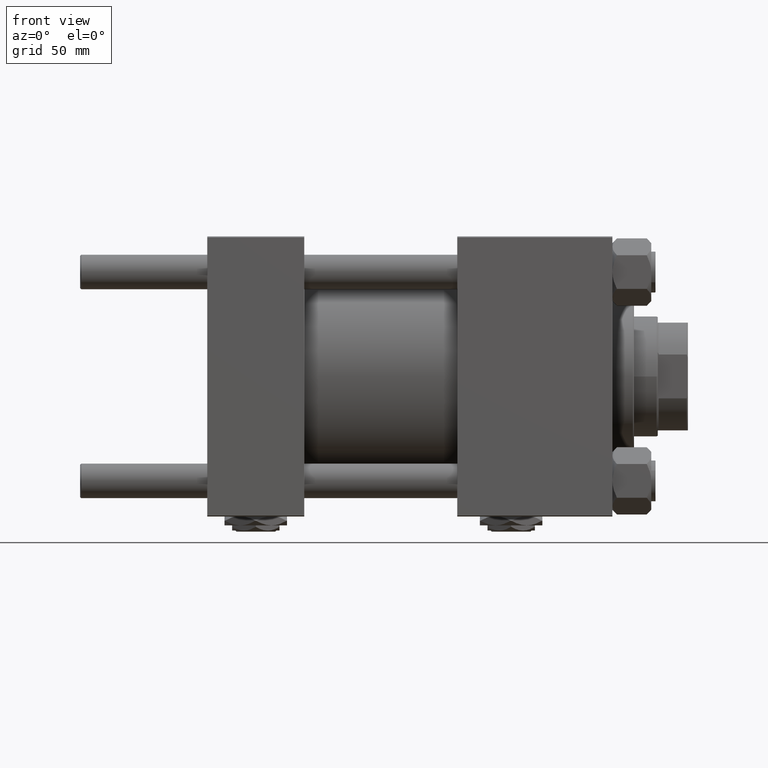
[diagram: clean part render]
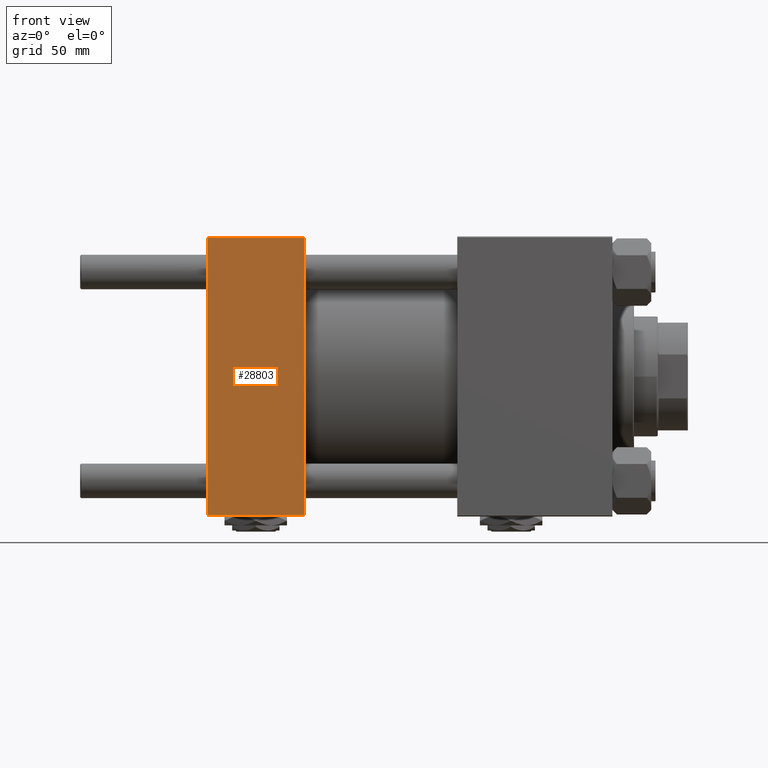
[diagram: same view with one face highlighted and labeled with its STEP entity id]
A machine part, front view. The second image highlights one B-rep face of the part: STEP entity #28803.
In plain terms, the highlighted planar face has unit normal (0, 1, 0).
Its self-contained STEP definition (entity closure, byte-faithful):
#1296 = EDGE_LOOP ( 'NONE', ( #44114, #6435, #18090, #30981 ) ) ;
#2799 = PLANE ( 'NONE',  #41675 ) ;
#3166 = CARTESIAN_POINT ( 'NONE',  ( 45.00000000000000000, -65.00000000000000000, 64.50000000000000000 ) ) ;
#4512 = VERTEX_POINT ( 'NONE', #49884 ) ;
#5077 = DIRECTION ( 'NONE',  ( 0.000000000000000000, 0.000000000000000000, -1.000000000000000000 ) ) ;
#5690 = EDGE_CURVE ( 'NONE', #4512, #36499, #43205, .T. ) ;
#6435 = ORIENTED_EDGE ( 'NONE', *, *, #5690, .T. ) ;
#6673 = CARTESIAN_POINT ( 'NONE',  ( 0.000000000000000000, -65.00000000000000000, 64.50000000000000000 ) ) ;
#9057 = LINE ( 'NONE', #24444, #20568 ) ;
#11271 = CARTESIAN_POINT ( 'NONE',  ( 45.00000000000000000, -65.00000000000000000, 65.00000000000000000 ) ) ;
#11839 = LINE ( 'NONE', #32482, #13292 ) ;
#12660 = VERTEX_POINT ( 'NONE', #40338 ) ;
#13292 = VECTOR ( 'NONE', #20824, 1000.000000000000000 ) ;
#14718 = FACE_OUTER_BOUND ( 'NONE', #1296, .T. ) ;
#18090 = ORIENTED_EDGE ( 'NONE', *, *, #38518, .F. ) ;
#20568 = VECTOR ( 'NONE', #5077, 1000.000000000000000 ) ;
#20824 = DIRECTION ( 'NONE',  ( 0.000000000000000000, 0.000000000000000000, -1.000000000000000000 ) ) ;
#24444 = CARTESIAN_POINT ( 'NONE',  ( 0.000000000000000000, -65.00000000000000000, 65.00000000000000000 ) ) ;
#26114 = EDGE_CURVE ( 'NONE', #48007, #4512, #9057, .T. ) ;
#27263 = LINE ( 'NONE', #3166, #30661 ) ;
#27535 = DIRECTION ( 'NONE',  ( -1.000000000000000000, 0.000000000000000000, 0.000000000000000000 ) ) ;
#27706 = EDGE_CURVE ( 'NONE', #12660, #48007, #27263, .T. ) ;
#28803 = ADVANCED_FACE ( 'NONE', ( #14718 ), #2799, .F. ) ;
#30661 = VECTOR ( 'NONE', #27535, 1000.000000000000000 ) ;
#30981 = ORIENTED_EDGE ( 'NONE', *, *, #27706, .T. ) ;
#31663 = DIRECTION ( 'NONE',  ( 0.000000000000000000, -0.000000000000000000, 1.000000000000000000 ) ) ;
#32482 = CARTESIAN_POINT ( 'NONE',  ( 45.00000000000000000, -65.00000000000000000, 65.00000000000000000 ) ) ;
#36499 = VERTEX_POINT ( 'NONE', #43381 ) ;
#38518 = EDGE_CURVE ( 'NONE', #12660, #36499, #11839, .T. ) ;
#40338 = CARTESIAN_POINT ( 'NONE',  ( 45.00000000000000000, -65.00000000000000000, 64.50000000000000000 ) ) ;
#41675 = AXIS2_PLACEMENT_3D ( 'NONE', #11271, #51514, #31663 ) ;
#43205 = LINE ( 'NONE', #47191, #48304 ) ;
#43381 = CARTESIAN_POINT ( 'NONE',  ( 45.00000000000000000, -65.00000000000000000, -64.49999999999991473 ) ) ;
#43977 = DIRECTION ( 'NONE',  ( 1.000000000000000000, 0.000000000000000000, 0.000000000000000000 ) ) ;
#44114 = ORIENTED_EDGE ( 'NONE', *, *, #26114, .T. ) ;
#47191 = CARTESIAN_POINT ( 'NONE',  ( 45.00000000000000000, -65.00000000000000000, -64.49999999999991473 ) ) ;
#48007 = VERTEX_POINT ( 'NONE', #6673 ) ;
#48304 = VECTOR ( 'NONE', #43977, 1000.000000000000000 ) ;
#49884 = CARTESIAN_POINT ( 'NONE',  ( 0.000000000000000000, -65.00000000000000000, -64.49999999999991473 ) ) ;
#51514 = DIRECTION ( 'NONE',  ( -0.000000000000000000, 1.000000000000000000, 0.000000000000000000 ) ) ;